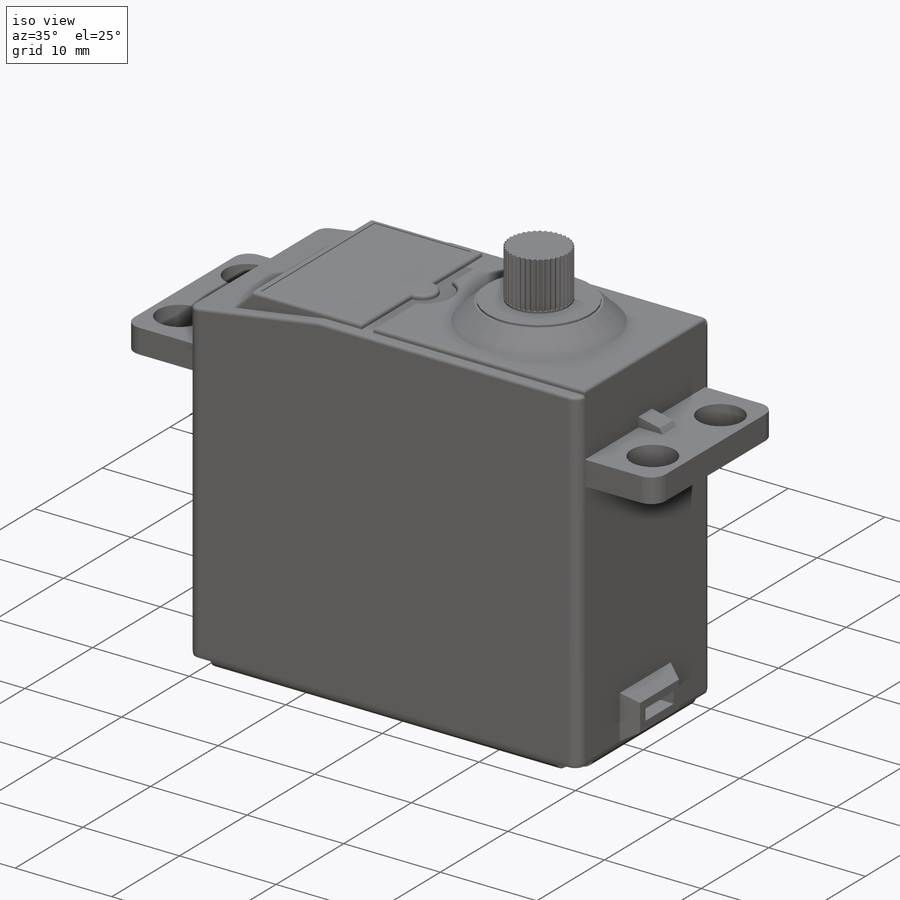
[diagram: iso view]
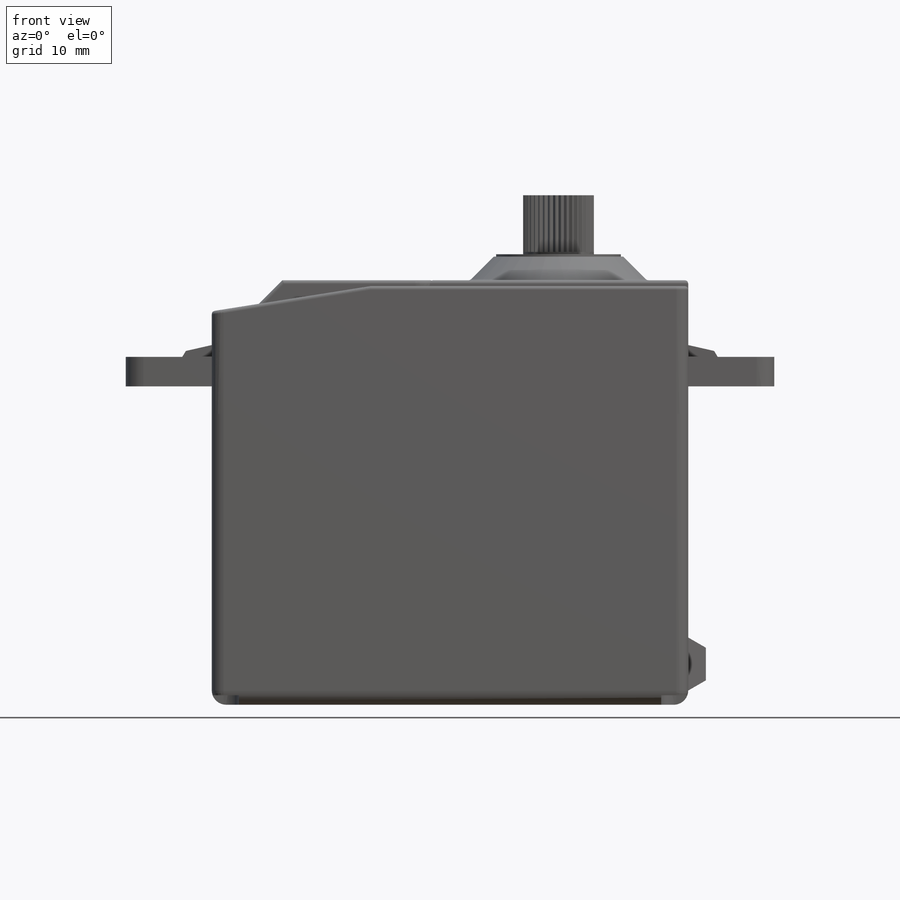
[diagram: front view]
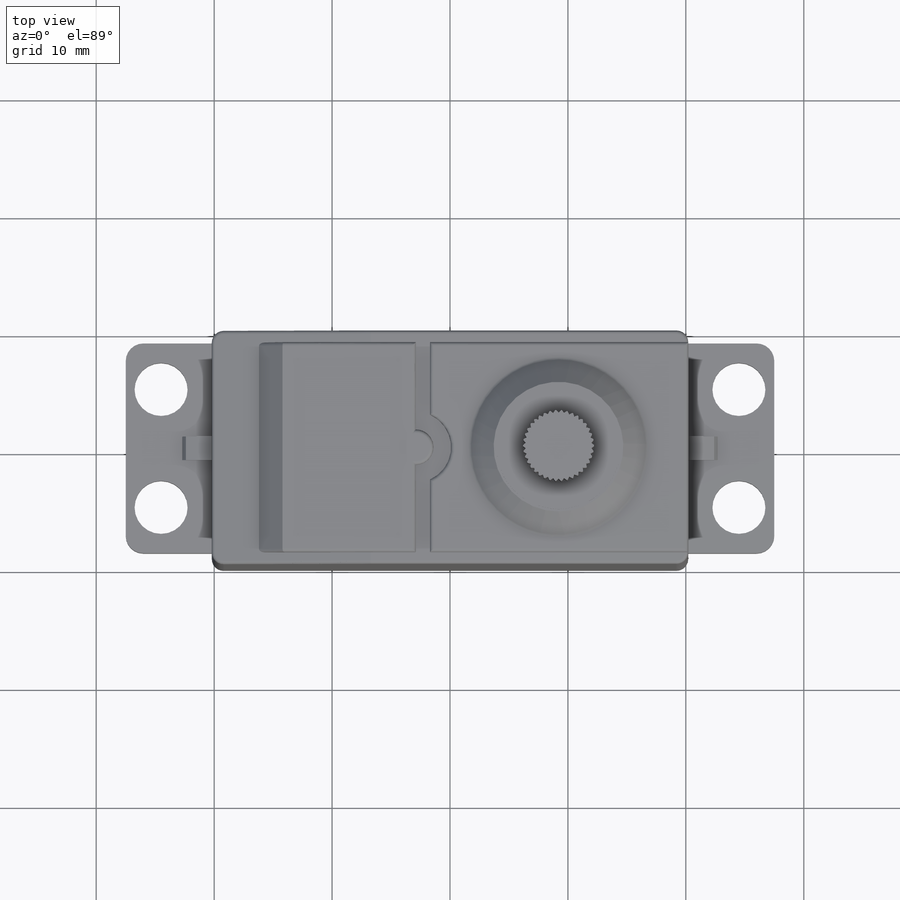
[diagram: top view]
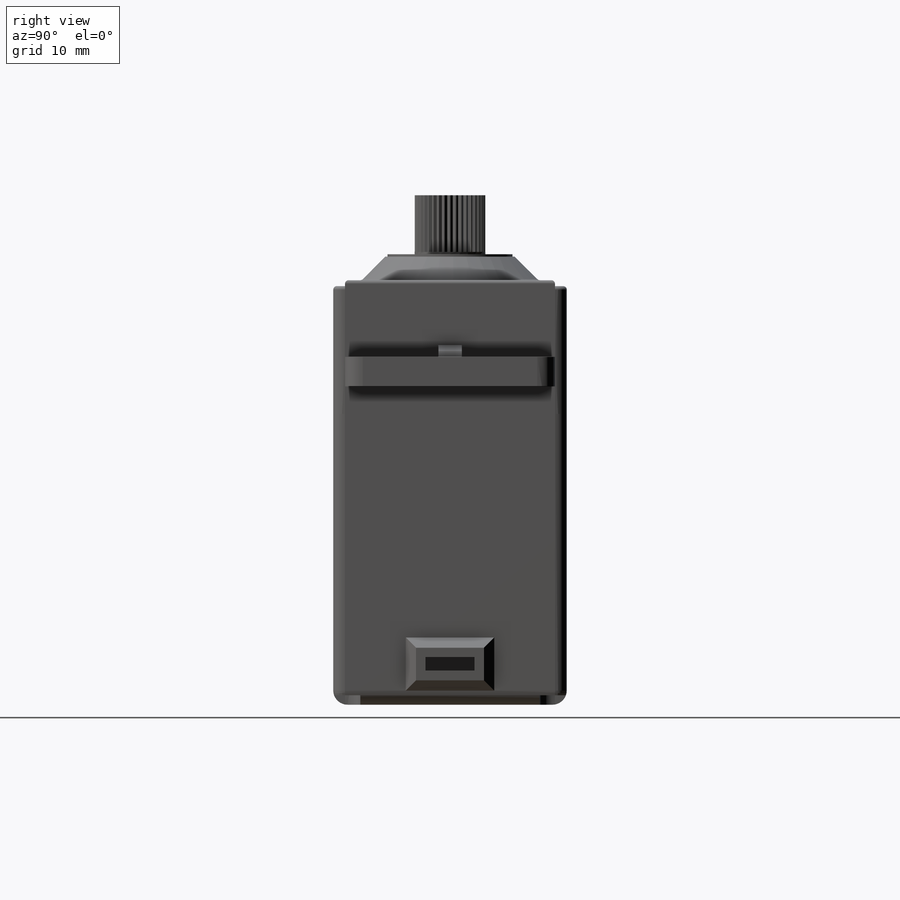
[diagram: right view]
SOLIDWORKS PART (.sldprt)
format: sldprt  version: not decoded by parser v0  size: 877,568 bytes
history: native  units: mm
features: sketch x19, cut_extrude x10, extrude x6, plane x5, mirror x4, fillet x3, material x1, pattern_circular x1, sweep x1 (+8 scaffold rows collapsed)
feature tree (58):
  scaffold x8  (default folders/planes/origin — collapsed)
  material  "Material <not specified>"
  plane  "Plano frontal"
  plane  "Plano superior"
  plane  "Plano direito"
  sketch  "Sketch1"  dims[D1=40.4mm D2=19.8mm]
  extrude  "Boss-Extrude1"  Depth=36mm
  fillet  "Fillet1"  Radius=1mm
  fillet  "Fillet4"  Radius=1.2mm
  sketch  "Sketch2"  dims[D1=1.5mm D2=1.3mm]
  cut_extrude  "Cut-Extrude1"  Depth=0.8mm
  plane  "Plane1"  Offset=27mm
  sketch  "Sketch3"  dims[D3=1.5mm D1=7.0mm D2=18.0mm D4=10.0mm D5=49.0mm D6=7.3mm]
  extrude  "Boss-Extrude2"  Depth=2.5mm
  mirror  "Mirror1"
  sketch  "Sketch4"  dims[D4=15.4mm D1=1.2mm D2=1.0mm D3=1.0mm]
  cut_extrude  "Cut-Extrude2"  Depth=1.5mm
  mirror  "Mirror2"
  sketch  "Sketch5"  dims[D1=4.5mm D2=7.5mm]
  extrude  "Boss-Extrude4"  Depth=1.5mm
  sketch  "Sketch6"  dims[D1=0.8mm]
  cut_extrude  "Cut-Extrude3"  Depth=5mm
  sketch  "Sketch7"  dims[c1.D1=6.0mm c1.D2=2.0mm c1.D3=4.0mm c1.D4=~4.020805mm c2.D4=144.0deg]
  cut_extrude  "Cut-Extrude4"  [1 undecoded]
  sketch  "Sketch8"  dims[D1=0.5mm]
  cut_extrude  "Cut-Extrude5"  Depth=1mm
  mirror  "Mirror3"
  sketch  "Sketch9"  dims[D1=0.5mm D2=0.5mm D3=0.5mm D4=10.0mm]
  cut_extrude  "Cut-Extrude6"  Depth=0.1mm
  sketch  "Sketch10"  dims[D2=1.5mm D3=3.0mm D1=0.8mm D4=1.2mm]
  cut_extrude  "Cut-Extrude7"  [1 undecoded]
  sketch  "Sketch11"  dims[D2=15.0mm D1=11.0mm]
  extrude  "Boss-Extrude5"  Depth=2mm
  sketch  "Sketch12"  dims[D1=0.2mm]
  extrude  "Boss-Extrude6"  Depth=0.2mm
  sketch  "Sketch13"  dims[D1=6.0mm D2=1.0mm]
  cut_extrude  "Cut-Extrude8"  Depth=2.2mm
  extrude  "Boss-Extrude7"  [1 undecoded]
  sketch  "Sketch13<3>"  dims[D1=5.0mm]
  sketch  "Sketch14"  dims[D1=0.3mm]
  cut_extrude  "Cut-Extrude9"  Depth=4.8mm
  pattern_circular  "CirPattern1"  Count=38 Angle=360deg
  sketch  "Sketch15"  dims[D1=1.0mm]
  cut_extrude  "Cut-Extrude10"  Depth=15mm
  plane  "Plane2"  Offset=2.337523mm
  sketch  "Sketch16"  dims[c1.D1=~1.466182mm c1.D2=~1.533818mm c1.D3=~2.634131mm c1.D4=~2.701767mm c2.D1=~1.466182mm]
  sketch  "Sketch17"
  sweep  "Sweep1"
  sketch  "Sketch18"  dims[c1.D1=1.0mm c1.D2=2.5mm c1.D3=0.5mm c2.D1=2.0mm]
  mirror  "Mirror4"
  fillet  "Fillet5"  Radius=0.3mm
decode coverage: 35 of 44 modeling features carry decoded parameters
note: ~ marks probable driven/reference dimensions
note: 3 parameter values undecoded
summary: no parameter record found for 3 features
note: suppression state not decoded; provenance and decode notes live in map.json
